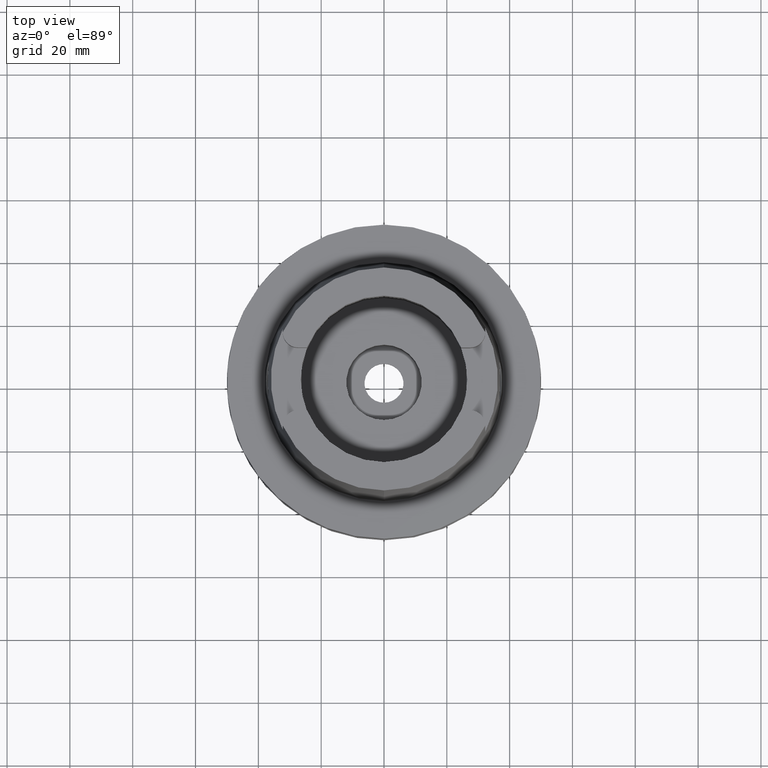
[diagram: clean part render]
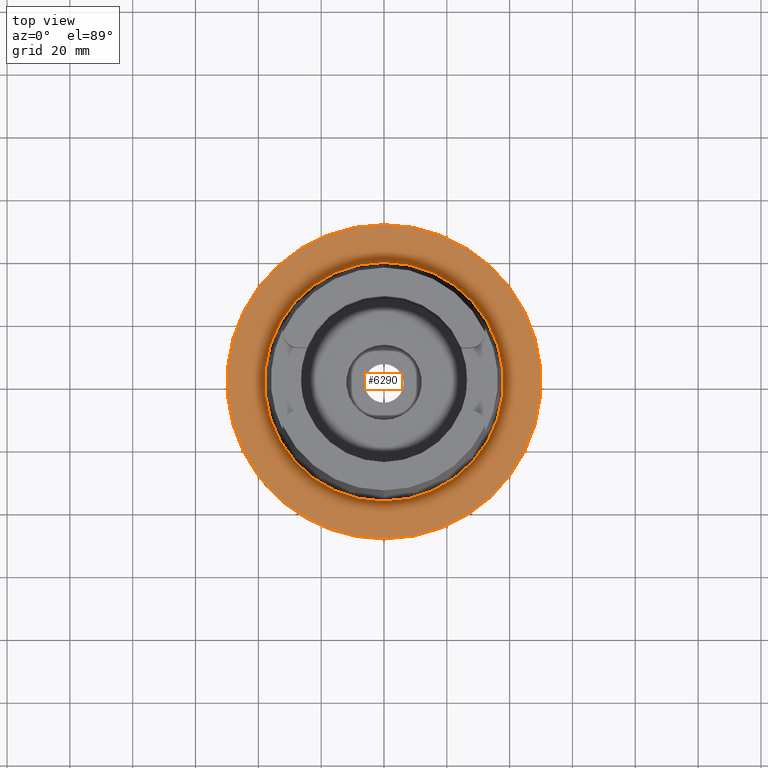
[diagram: same view with one face highlighted and labeled with its STEP entity id]
A machine part, top view. The second image highlights one B-rep face of the part: STEP entity #6290.
In plain terms, the highlighted planar face has unit normal (0, 0, 1).
Its self-contained STEP definition (entity closure, byte-faithful):
#3304=CARTESIAN_POINT('',(0.E0,0.E0,0.E0));
#3305=DIRECTION('',(0.E0,0.E0,-1.E0));
#3306=DIRECTION('',(0.E0,-1.E0,0.E0));
#3307=AXIS2_PLACEMENT_3D('',#3304,#3305,#3306);
#3312=CARTESIAN_POINT('',(0.E0,0.E0,0.E0));
#3313=DIRECTION('',(0.E0,0.E0,-1.E0));
#3314=DIRECTION('',(0.E0,1.E0,0.E0));
#3315=AXIS2_PLACEMENT_3D('',#3312,#3313,#3314);
#3320=CARTESIAN_POINT('',(0.E0,0.E0,1.136868377216E-13));
#3321=DIRECTION('',(0.E0,0.E0,1.E0));
#3322=DIRECTION('',(0.E0,-1.E0,0.E0));
#3323=AXIS2_PLACEMENT_3D('',#3320,#3321,#3322);
#3328=CARTESIAN_POINT('',(0.E0,0.E0,1.136868377216E-13));
#3329=DIRECTION('',(0.E0,0.E0,1.E0));
#3330=DIRECTION('',(0.E0,1.E0,0.E0));
#3331=AXIS2_PLACEMENT_3D('',#3328,#3329,#3330);
#3563=CARTESIAN_POINT('',(0.E0,-3.800001658252E1,2.273736754432E-13));
#3564=VERTEX_POINT('',#3563);
#3565=CARTESIAN_POINT('',(0.E0,3.800001658252E1,1.136868377216E-13));
#3566=VERTEX_POINT('',#3565);
#3994=CARTESIAN_POINT('',(0.E0,5.E1,0.E0));
#3995=VERTEX_POINT('',#3994);
#3996=CARTESIAN_POINT('',(0.E0,-5.E1,0.E0));
#3997=VERTEX_POINT('',#3996);
#6277=CARTESIAN_POINT('',(0.E0,0.E0,0.E0));
#6278=DIRECTION('',(0.E0,0.E0,1.E0));
#6279=DIRECTION('',(0.E0,1.E0,0.E0));
#6280=AXIS2_PLACEMENT_3D('',#6277,#6278,#6279);
#6281=PLANE('',#6280);
#6282=ORIENTED_EDGE('',*,*,#6042,.T.);
#6283=ORIENTED_EDGE('',*,*,#6151,.T.);
#6284=EDGE_LOOP('',(#6282,#6283));
#6285=FACE_OUTER_BOUND('',#6284,.F.);
#6286=ORIENTED_EDGE('',*,*,#4217,.T.);
#6287=ORIENTED_EDGE('',*,*,#4176,.T.);
#6288=EDGE_LOOP('',(#6286,#6287));
#6289=FACE_BOUND('',#6288,.F.);
#3308=CIRCLE('',#3307,5.E1);
#3316=CIRCLE('',#3315,5.E1);
#3324=CIRCLE('',#3323,3.800001658252E1);
#3332=CIRCLE('',#3331,3.800001658252E1);
#4176=EDGE_CURVE('',#3566,#3564,#3332,.T.);
#4217=EDGE_CURVE('',#3564,#3566,#3324,.T.);
#6042=EDGE_CURVE('',#3997,#3995,#3308,.T.);
#6151=EDGE_CURVE('',#3995,#3997,#3316,.T.);
#6290=ADVANCED_FACE('',(#6285,#6289),#6281,.T.);